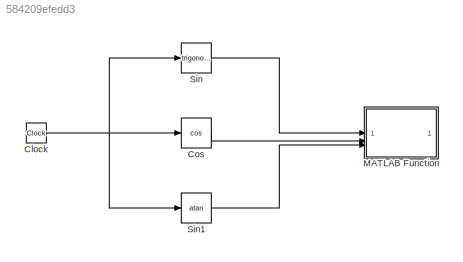
MODEL slx_584209efedd3
KIND model
CONFIG AbsTol = auto
CONFIG EnableMultiTasking = off
CONFIG FixedStep = auto
CONFIG MaxStep = auto
CONFIG MinStep = auto
CONFIG RelTol = 1e-3
CONFIG SampleTimeConstraint = Unconstrained
CONFIG SolverName = VariableStepAuto
CONFIG StartTime = 0.0
CONFIG StopTime = 50
BLOCK [Clock] Clock
BLOCK [Trigonometry] Cos
  Operator = cos
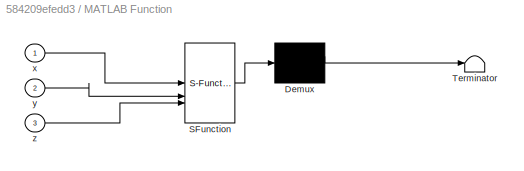
BLOCK [SubSystem] MATLAB Function
  ErrorFcn = Stateflow.Translate.translate
  LibrarySourceBlock = simulink/User-Defined\nFunctions/MATLAB Function
  PermitHierarchicalResolution = ExplicitOnly
  SFBlockType = MATLAB Function
  TreatAsAtomicUnit = on
BLOCK [Demux] MATLAB Function/ Demux 
  Outputs = 1
BLOCK [S-Function] MATLAB Function/ SFunction 
  EnableBusSupport = on
  FunctionName = sf_sfun
  PortCounts = [3 1]
  SFcnIsStateOwnerBlock = off
  SFunctionDeploymentMode = off
  Tag = Stateflow S-Function 2
BLOCK [Terminator] MATLAB Function/ Terminator 
BLOCK [Inport] MATLAB Function/x
BLOCK [Inport] MATLAB Function/y
  Port = 2
BLOCK [Inport] MATLAB Function/z
  Port = 3
BLOCK [Trigonometry] Sin
BLOCK [Trigonometry] Sin1
  Operator = atan
NET Clock:1 -> Cos:1, Sin1:1, Sin:1
LINE Cos:1 -> MATLAB Function:2
LINE Sin1:1 -> MATLAB Function:3
LINE Sin:1 -> MATLAB Function:1
note: NET lines group one-source signal fan-out (src -> all destinations, sorted); 1:1 wires keep LINE
CHART MATLAB Function states=1 transitions=1
  STATE_LABEL 'eML_blk_kernel()'
  STATE_LABEL 'SCRIPT:\nfunction plot3D(x, y, z)\n    % 定义persistent变量\n    persistent xs ys zs index\n    % 如果变量为空，初始化它们\n    if isempty(xs) && isempty(ys) && isempty(zs)\n        xs = zeros(1, 10000); % 预先分配一个足够大的数组\n        ys = zeros(1, 10000);\n        zs = zeros(1, 10000);\n        index = 1; % 用于跟踪当前的索引\n    end\n\n    if index >= length(xs) % 如果数组满了，将原数据进行压缩\n        [xs, ys, zs, index] = compress(xs, ys, zs, index);...<+662ch>'
CHART  states=0 transitions=0
